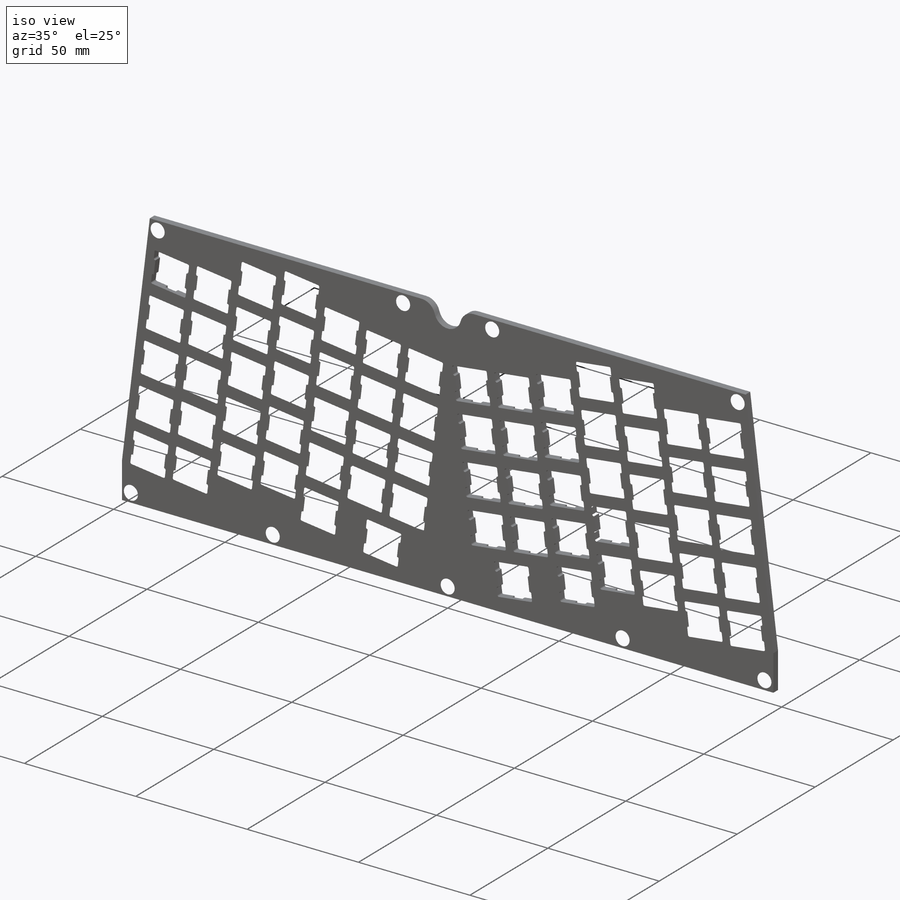
[diagram: iso view]
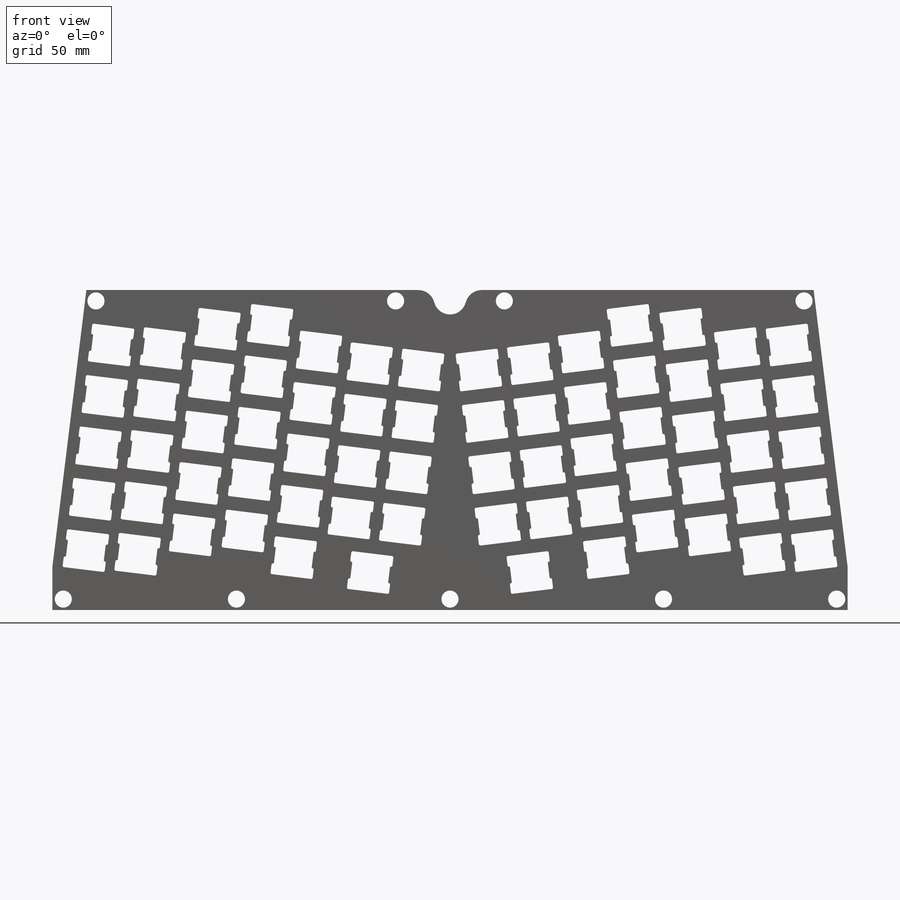
[diagram: front view]
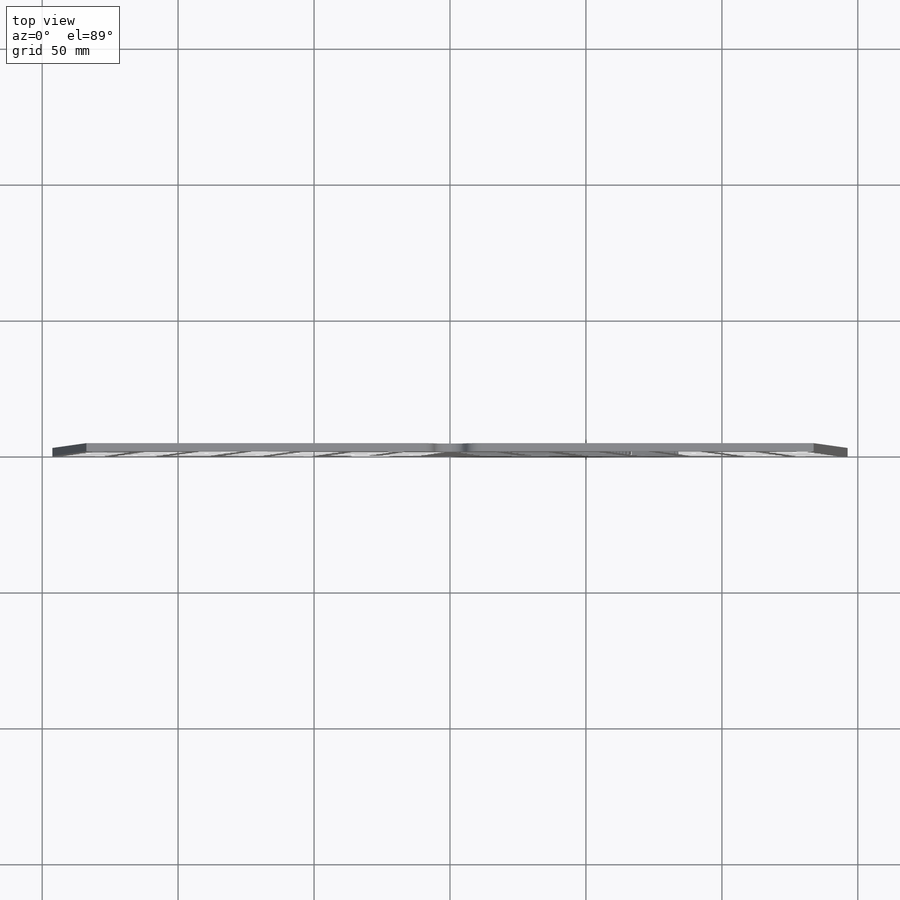
[diagram: top view]
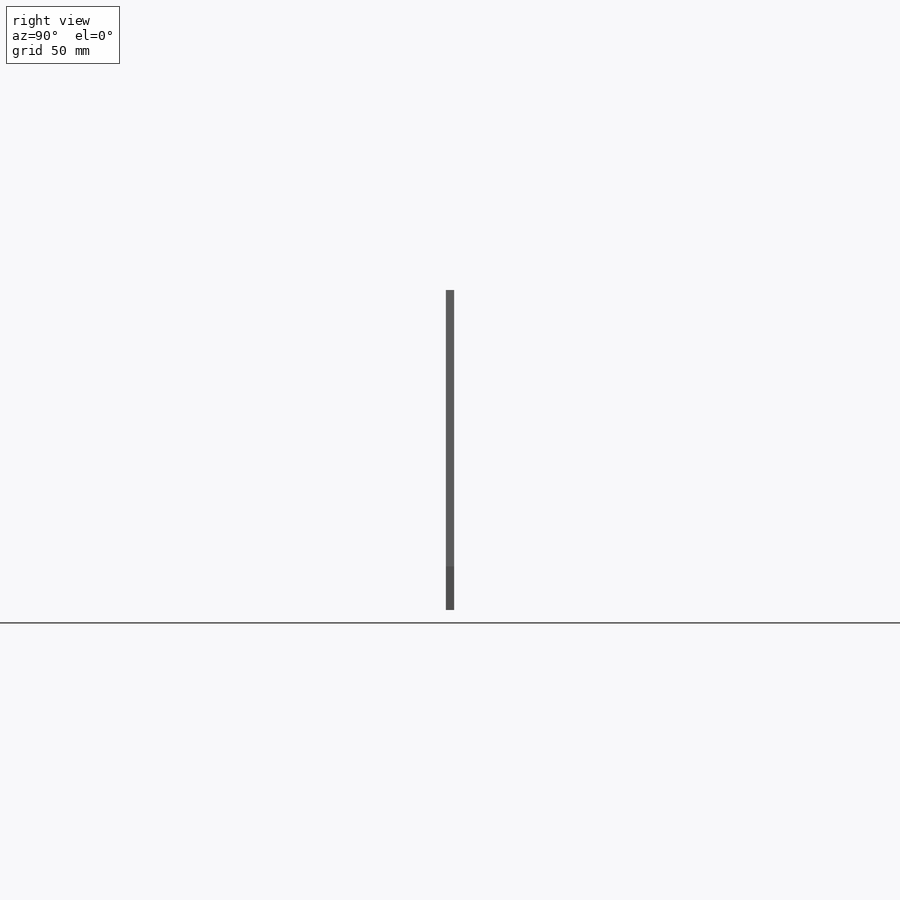
[diagram: right view]
SOLIDWORKS PART (.sldprt)
format: sldprt  version: not decoded by parser v0  size: 3,923,456 bytes
history: native  units: mm
features: sketch x3, fillet x2, material x1, extrude x1, hole x1 (+11 scaffold rows collapsed)
feature tree (19):
  scaffold x11  (default folders/planes/origin — collapsed)
  material  "Material <not specified>"
  sketch  "sk Plate Outline"  dims[c1.D11=8.0mm c1.D29=8.0mm c1.D30=~5.997432mm c1.D31=6.0mm c1.D1=19.05mm c1.D2=19.05mm c1.D3=19.05mm c1.D4=19.05mm c1.D6=19.05mm c1.D7=247.65mm c1.D8=14.525mm c1.D9=29.525mm c1.D10=24.525mm c2.D11=14.525mm c2.D12=276.7mm c2.D13=130.25mm c2.D2=19.05mm c2.D3=9.525mm c2.D4=4.7625mm c2.D5=9.525mm c2.D6=1.0mm c2.D7=10.0mm c2.D8=9.525mm c2.D9=19.05mm c2.D10=19.05mm c3.D11=19.0mm c3.D12=11.5mm c3.D13=30.0mm c3.D14=~135.90187mm c3.D15=~296.389782mm c4.D13=13.0mm c4.D16=15.0mm c4.D17=15.0mm c4.D3=9.525mm c4.D4=14.2875mm c4.D5=3.7625mm c5.D16=1.0mm c5.D8=11.0mm c5.D18=~18.968622mm c6.D18=7.0deg c6.D19=1.0mm c6.D20=3.76mm c6.D21=9.525mm c6.D22=14.29mm c6.D23=2.0mm c6.D3=20.0mm c6.D4=~117.670622mm c6.D5=9.525mm c6.D6=9.525mm c6.D7=9.525mm c6.D8=19.05mm c7.D3=2.0mm c7.D14=4.0mm c7.D11=4.0mm c7.D16=4.0mm c7.D17=4.0mm c7.D24=4.0mm c7.D25=4.0mm c7.D26=20.0mm c7.D27=~14.591976mm c7.D28=~14.973162mm c8.D27=7.5mm c8.D28=7.0mm c8.D30=3.0mm c8.D22=3.765mm c8.D21=7.53mm c8.D20=16.0mm c8.D32=~293.113644mm c8.D33=1.0mm c8.D34=4.7625mm c8.D35=4.7625mm c8.D1=7.0 c8.D9=5.0]
  extrude  "Extr Plate"  Depth=3mm
  hole  "CSK for M3 Flat Head Machine Screw1"  Diameter=3.4mm Depth=3mm
  sketch  "Sketch2"
  sketch  "Sketch3"  dims[hole-wizard template sketch: 59 standard entries collapsed; hole parameters above]
  fillet  "Fillet1"  Radius=4mm
  fillet  "cavStabilizers"  [1 undecoded]
decode coverage: 5 of 7 modeling features carry decoded parameters
note: ~ marks probable driven/reference dimensions
note: 1 parameter value undecoded
note: suppression state not decoded; provenance and decode notes live in map.json
